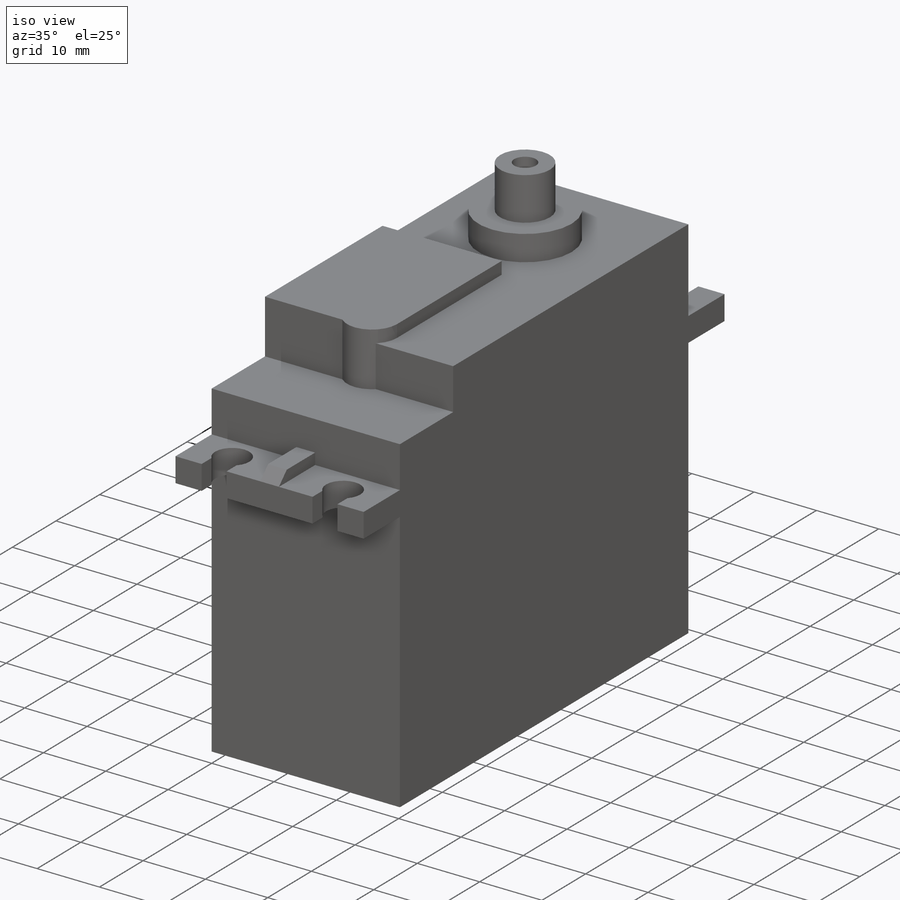
[diagram: iso view]
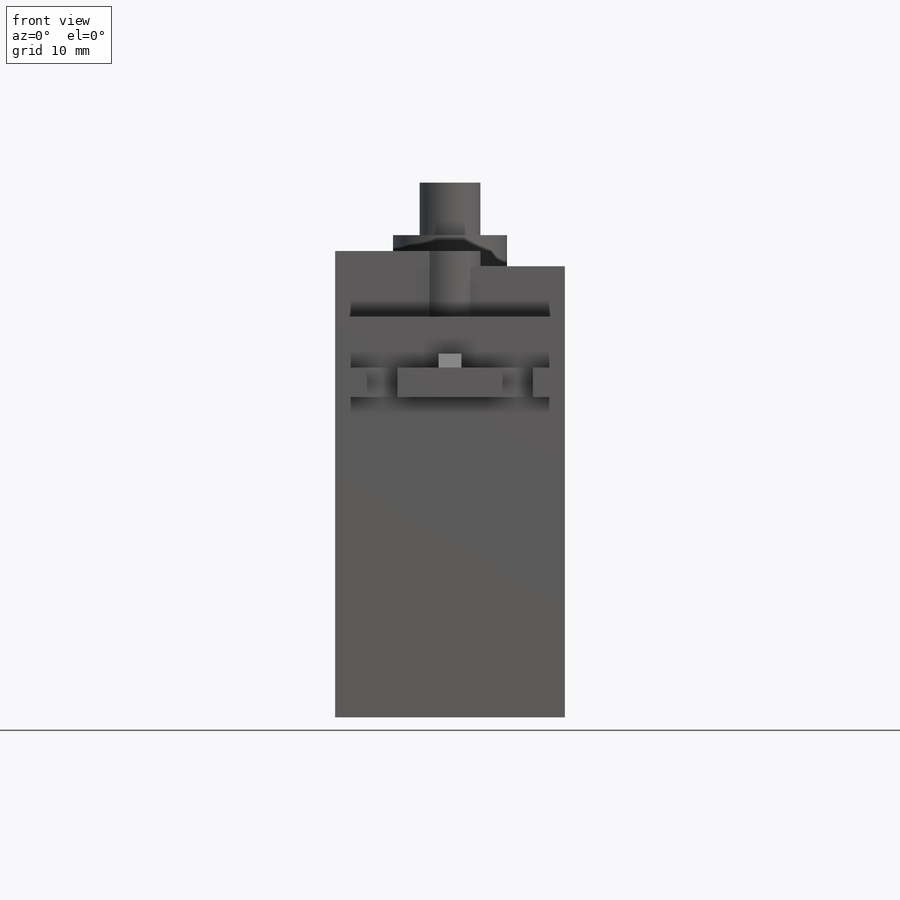
[diagram: front view]
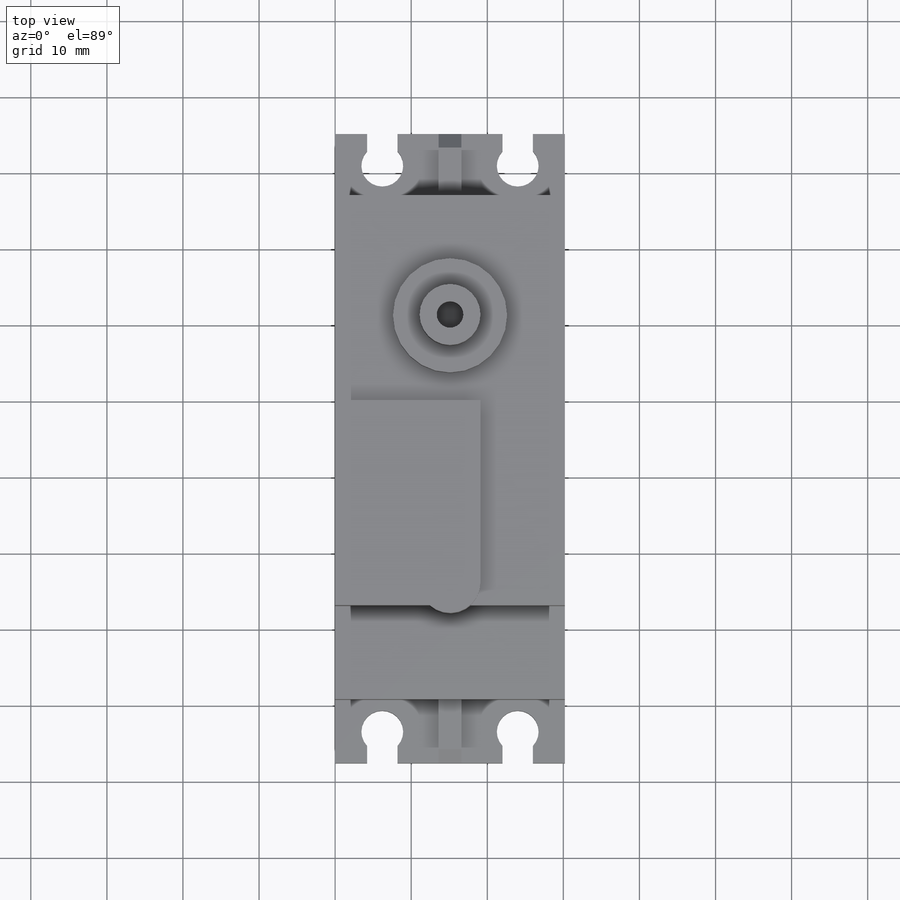
[diagram: top view]
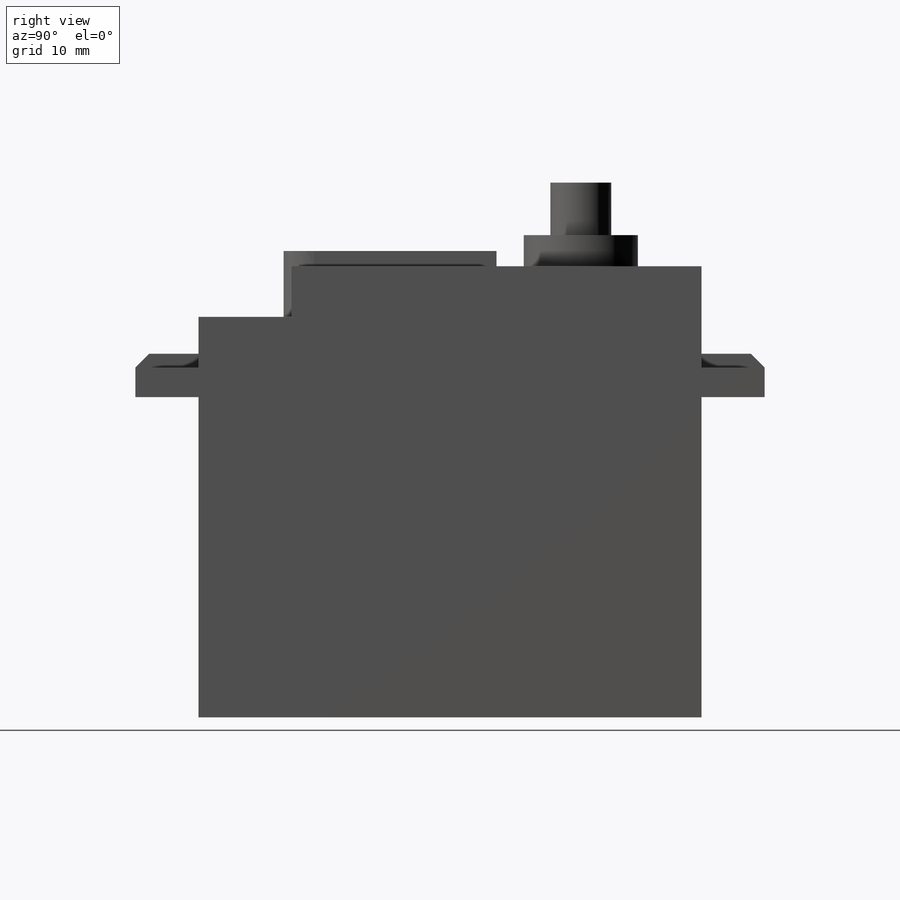
[diagram: right view]
SOLIDWORKS PART (.sldprt)
format: sldprt  version: not decoded by parser v0  size: 288,768 bytes
history: native  units: mm
features: sketch x9, extrude x6, cut_extrude x3, material x1, plane x1 (+12 scaffold rows collapsed)
feature tree (32):
  scaffold x12  (default folders/planes/origin — collapsed)
  material  "Material <not specified>"
  sketch  "Sketch1"  dims[c1.D1=13.3mm c1.D2=~8.961022mm c2.D2=90.0deg c3.D2=6.65mm]
  extrude  "Boss-Extrude1"  Depth=30.2mm
  sketch  "Sketch9"  dims[D1=30.2mm]
  cut_extrude  "Cut-Extrude3"  Depth=6.9mm
  sketch  "Sketch10"  dims[D1=~11.668798mm]
  extrude  "Boss-Extrude6"  Depth=4.1mm
  sketch  "Sketch11"  dims[D1=8.0mm]
  extrude  "Boss-Extrude7"  Depth=6.9mm
  plane  "Plane3"  Offset=2mm
  sketch  "Sketch14"  dims[D1=~23.977908mm]
  extrude  "Boss-Extrude8"  Depth=8.9mm
  sketch  "Sketch17"  dims[D1=~2.965312mm]
  extrude  "Boss-Extrude9"  Depth=2mm
  sketch  "Sketch18"  dims[D1=~13.875897mm]
  extrude  "Boss-Extrude10"  Depth=1.8mm
  sketch  "Sketch22"  dims[D1=~16.690984mm]
  cut_extrude  "Cut-Extrude5"  Depth=4mm
  sketch  "Sketch23"  dims[D1=3.5mm]
  cut_extrude  "Cut-Extrude6"  Depth=7mm
decode coverage: 18 of 18 modeling features carry decoded parameters
note: ~ marks probable driven/reference dimensions
note: suppression state not decoded; provenance and decode notes live in map.json
